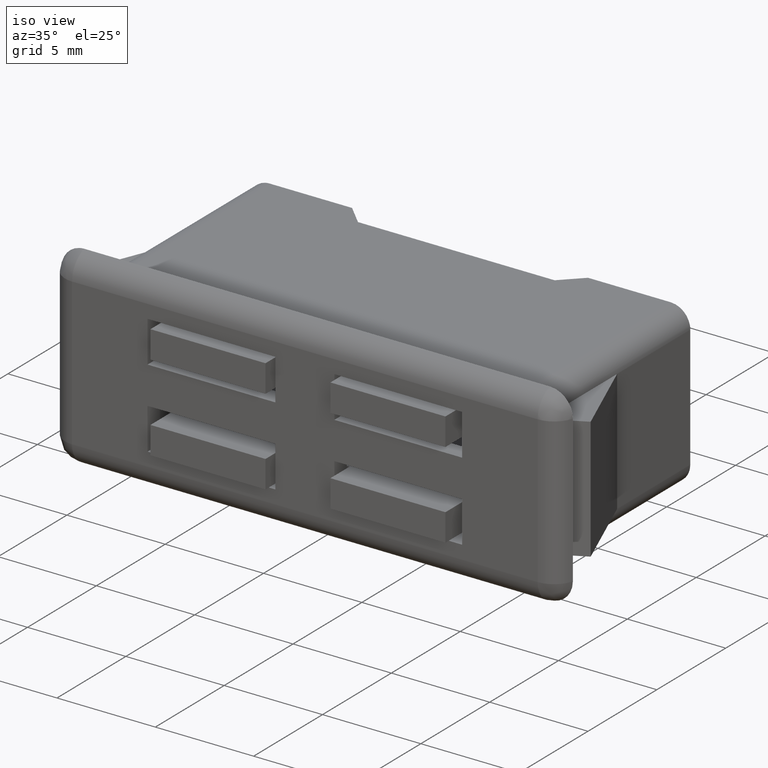
[diagram: clean part render]
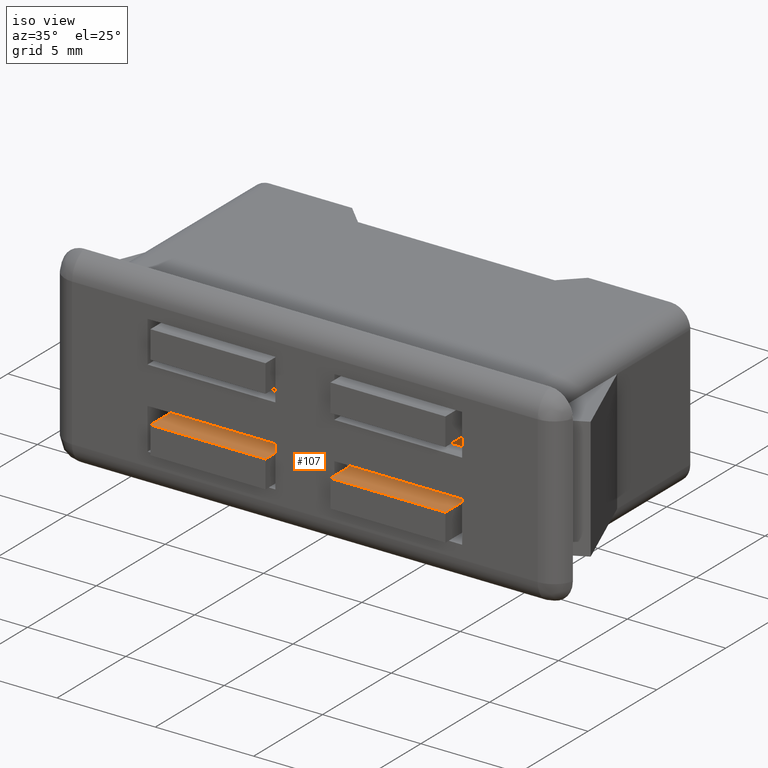
[diagram: same view with one face highlighted and labeled with its STEP entity id]
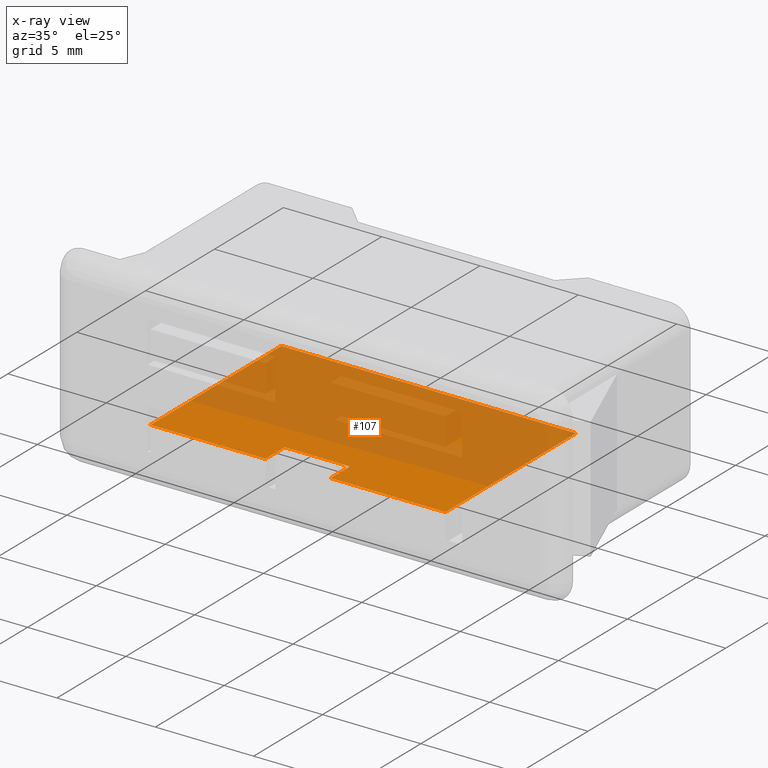
[diagram: x-ray of the same camera — body ghosted, the highlighted face saturated]
A machine part, iso view. The second image highlights one B-rep face of the part: STEP entity #107.
The next image is the same camera in x-ray: the body ghosted, the highlighted face saturated — about 71% of this face is hidden behind the body in this view.
In plain terms, the highlighted face is a freeform B-spline surface patch.
Its self-contained STEP definition (entity closure, byte-faithful):
#44=CARTESIAN_POINT('',(-8.249254029917777,-2.525475368062830,2.650002000000000));
#45=CARTESIAN_POINT('',(8.249250566359722,-2.525475368062830,2.650002000000000));
#46=CARTESIAN_POINT('',(-8.249254029917777,-12.974517886746840,2.650002000000000));
#47=CARTESIAN_POINT('',(8.249250566359722,-12.974517886746840,2.650002000000000));
#48=B_SPLINE_SURFACE_WITH_KNOTS('',1,1,((#44,#46),(#45,#47)),.UNSPECIFIED.,.F.,.F.,.U.,(2,2),(2,2),(0.0,16.498504596277499),(0.0,10.449042518684010),.UNSPECIFIED.);
#49=CARTESIAN_POINT('',(-7.500004000000001,-12.499993000000000,2.650002000000000));
#50=VERTEX_POINT('',#49);
#51=CARTESIAN_POINT('',(-1.650002000000000,-12.499993000000000,2.650002000000000));
#52=VERTEX_POINT('',#51);
#53=CARTESIAN_POINT('',(-7.500004000000001,-12.499993000000000,2.650002000000000));
#54=CARTESIAN_POINT('',(-1.650002000000000,-12.499993000000000,2.650002000000000));
#55=QUASI_UNIFORM_CURVE('',1,(#53,#54),.UNSPECIFIED.,.F.,.U.);
#56=EDGE_CURVE('',#50,#52,#55,.T.);
#57=ORIENTED_EDGE('',*,*,#56,.T.);
#58=CARTESIAN_POINT('',(-1.650002000000000,-11.099991000000101,2.650002000000000));
#59=VERTEX_POINT('',#58);
#60=CARTESIAN_POINT('',(-1.650002000000000,-12.499993000000000,2.650002000000000));
#61=CARTESIAN_POINT('',(-1.650002000000000,-11.099991000000101,2.650002000000000));
#62=QUASI_UNIFORM_CURVE('',1,(#60,#61),.UNSPECIFIED.,.F.,.U.);
#63=EDGE_CURVE('',#52,#59,#62,.T.);
#64=ORIENTED_EDGE('',*,*,#63,.T.);
#65=CARTESIAN_POINT('',(1.650001000000000,-11.099991000000101,2.650002000000000));
#66=VERTEX_POINT('',#65);
#67=CARTESIAN_POINT('',(-1.650002000000000,-11.099991000000101,2.650002000000000));
#68=CARTESIAN_POINT('',(1.650001000000000,-11.099991000000101,2.650002000000000));
#69=QUASI_UNIFORM_CURVE('',1,(#67,#68),.UNSPECIFIED.,.F.,.U.);
#70=EDGE_CURVE('',#59,#66,#69,.T.);
#71=ORIENTED_EDGE('',*,*,#70,.T.);
#72=CARTESIAN_POINT('',(1.650001000000000,-12.499993000000000,2.650002000000000));
#73=VERTEX_POINT('',#72);
#74=CARTESIAN_POINT('',(1.650001000000000,-11.099991000000101,2.650002000000000));
#75=CARTESIAN_POINT('',(1.650001000000000,-12.499993000000000,2.650002000000000));
#76=QUASI_UNIFORM_CURVE('',1,(#74,#75),.UNSPECIFIED.,.F.,.U.);
#77=EDGE_CURVE('',#66,#73,#76,.T.);
#78=ORIENTED_EDGE('',*,*,#77,.T.);
#79=CARTESIAN_POINT('',(7.500000000000000,-12.499993000000000,2.650002000000000));
#80=VERTEX_POINT('',#79);
#81=CARTESIAN_POINT('',(1.650001000000000,-12.499993000000000,2.650002000000000));
#82=CARTESIAN_POINT('',(7.500000000000000,-12.499993000000000,2.650002000000000));
#83=QUASI_UNIFORM_CURVE('',1,(#81,#82),.UNSPECIFIED.,.F.,.U.);
#84=EDGE_CURVE('',#73,#80,#83,.T.);
#85=ORIENTED_EDGE('',*,*,#84,.T.);
#86=CARTESIAN_POINT('',(7.500000000000000,-3.0,2.650002000000000));
#87=VERTEX_POINT('',#86);
#88=CARTESIAN_POINT('',(7.500000000000000,-12.499993000000000,2.650002000000000));
#89=CARTESIAN_POINT('',(7.500000000000000,-3.0,2.650002000000000));
#90=QUASI_UNIFORM_CURVE('',1,(#88,#89),.UNSPECIFIED.,.F.,.U.);
#91=EDGE_CURVE('',#80,#87,#90,.T.);
#92=ORIENTED_EDGE('',*,*,#91,.T.);
#93=CARTESIAN_POINT('',(-7.500004000000001,-3.0,2.650002000000000));
#94=VERTEX_POINT('',#93);
#95=CARTESIAN_POINT('',(7.500000000000000,-3.0,2.650002000000000));
#96=CARTESIAN_POINT('',(-7.500004000000001,-3.0,2.650002000000000));
#97=QUASI_UNIFORM_CURVE('',1,(#95,#96),.UNSPECIFIED.,.F.,.U.);
#98=EDGE_CURVE('',#87,#94,#97,.T.);
#99=ORIENTED_EDGE('',*,*,#98,.T.);
#100=CARTESIAN_POINT('',(-7.500004000000001,-3.0,2.650002000000000));
#101=CARTESIAN_POINT('',(-7.500004000000001,-12.499993000000000,2.650002000000000));
#102=QUASI_UNIFORM_CURVE('',1,(#100,#101),.UNSPECIFIED.,.F.,.U.);
#103=EDGE_CURVE('',#94,#50,#102,.T.);
#104=ORIENTED_EDGE('',*,*,#103,.T.);
#105=EDGE_LOOP('',(#57,#64,#71,#78,#85,#92,#99,#104));
#106=FACE_OUTER_BOUND('',#105,.T.);
#107=ADVANCED_FACE('',(#106),#48,.F.);